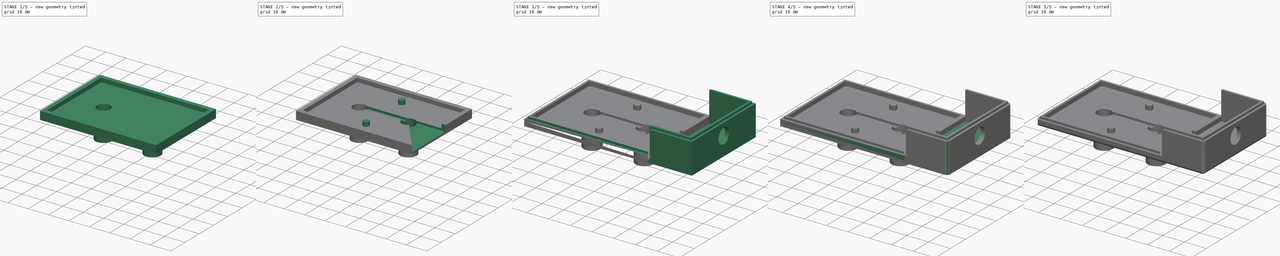
[diagram: build sequence overview — one tinted view per stage of 5, left to right]
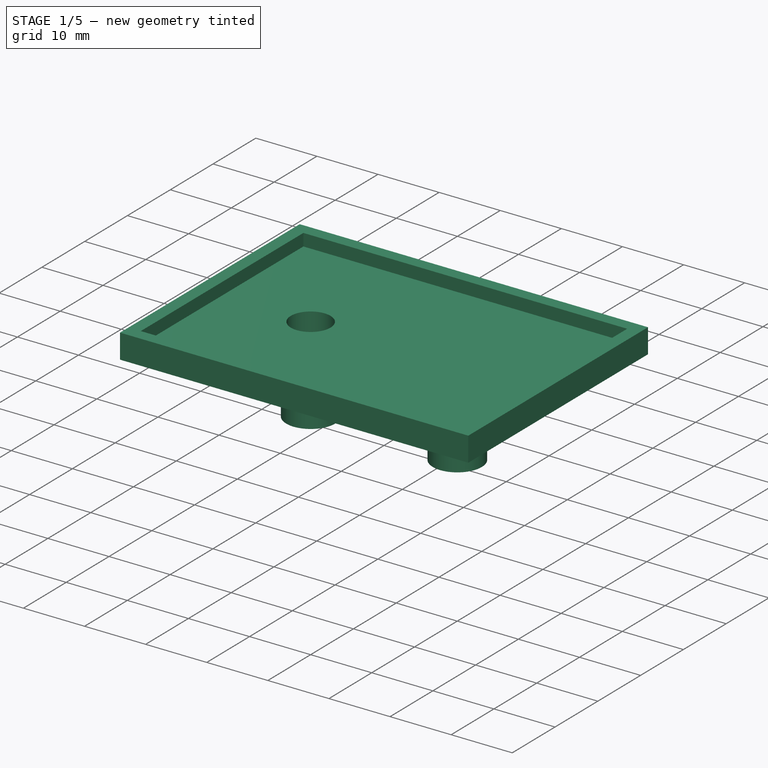
[diagram: stage 1 of 5 — iso view after this stage's code; geometry added in this stage tinted green]
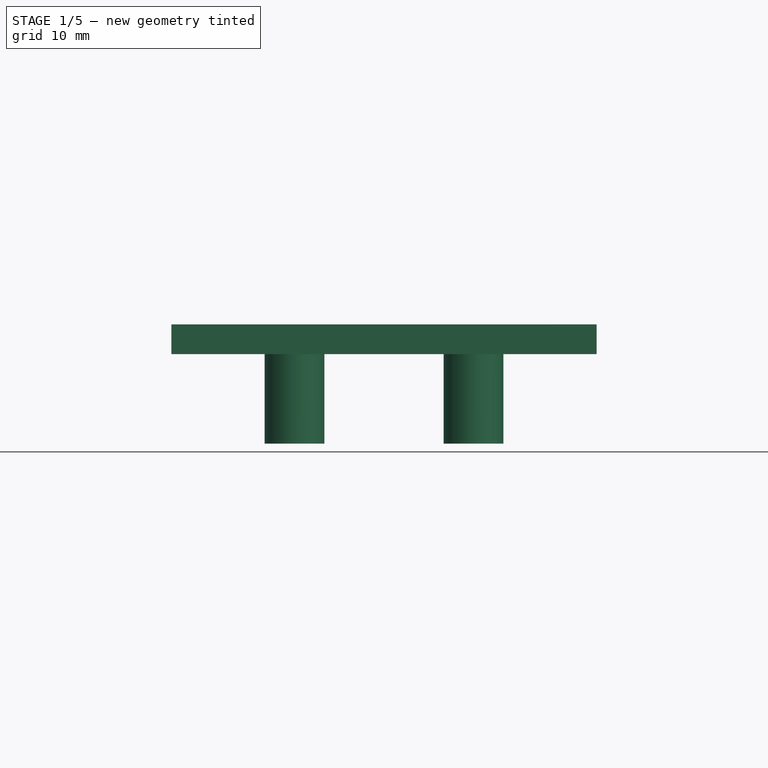
[diagram: stage 1 of 5 — front view after this stage's code; geometry added in this stage tinted green]
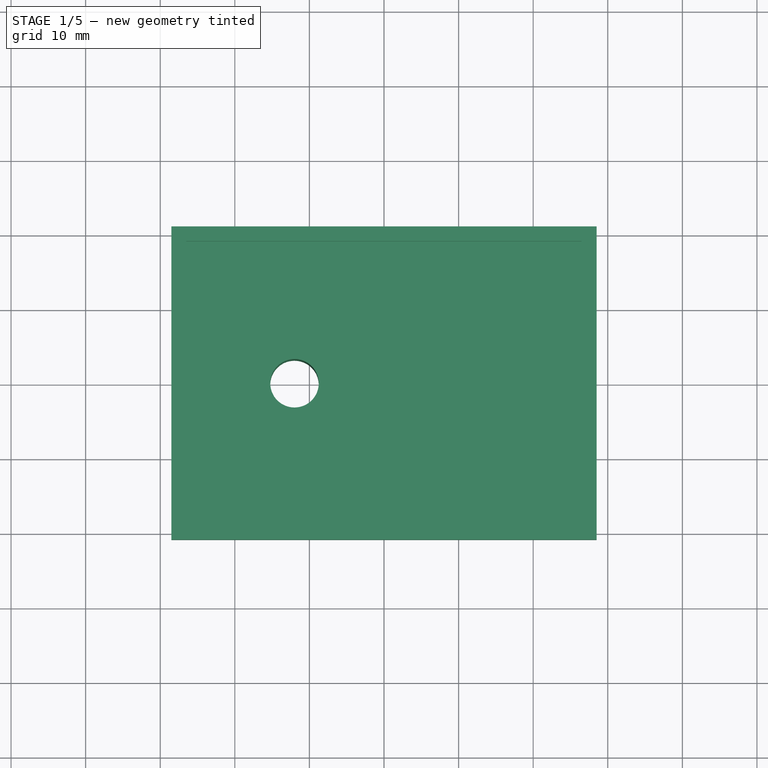
[diagram: stage 1 of 5 — top view after this stage's code; geometry added in this stage tinted green]
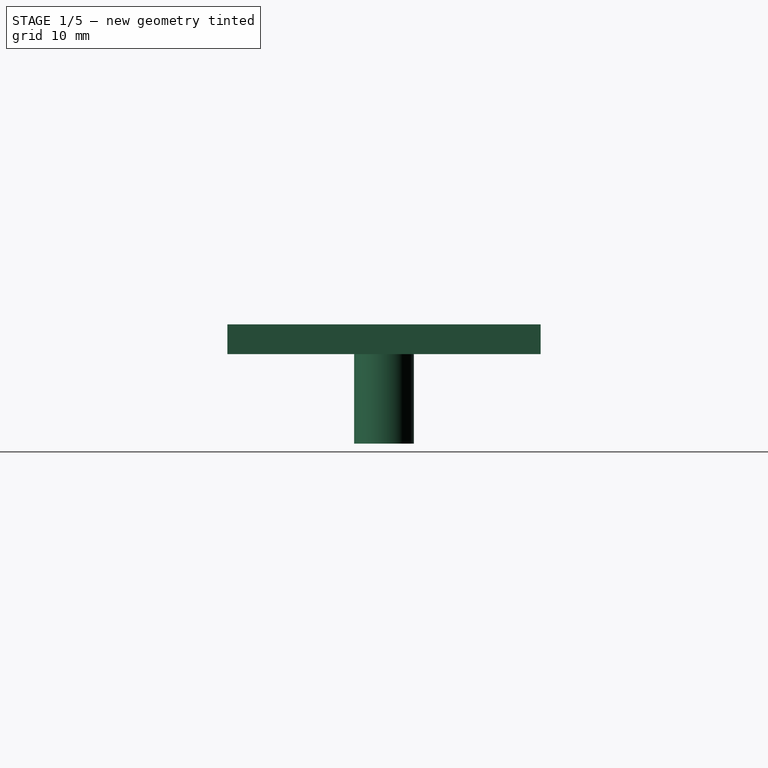
[diagram: stage 1 of 5 — right view after this stage's code; geometry added in this stage tinted green]
FCSTD DOCUMENT  (FreeCAD 0.20R29603 (Git))
Label: batteryHolder
License: All rights reserved
LicenseURL: http://en.wikipedia.org/wiki/All_rights_reserved
objects: Sketcher::SketchObject×23, PartDesign::Pocket×13, PartDesign::Pad×10, PartDesign::Mirrored×3, App::MeasureDistance×2, PartDesign::Body×1
note: 73 computed .brp shape members not serialized (recipe doc carries the construction recipe); baked Part::Feature solids carry a one-line shape summary decoded from their .brp

FEATURE [Sketcher::SketchObject] Sketch
  FullyConstrained = true
  MapMode = 5
  Support = -> [XY_Plane]
  sketch-geometry (4):
    g0: LineSegment StartX=-28.5 StartY=21 StartZ=0 EndX=28.5 EndY=21 EndZ=0
    g1: LineSegment StartX=28.5 StartY=21 StartZ=0 EndX=28.5 EndY=-21 EndZ=0
    g2: LineSegment StartX=28.5 StartY=-21 StartZ=0 EndX=-28.5 EndY=-21 EndZ=0
    g3: LineSegment StartX=-28.5 StartY=-21 StartZ=0 EndX=-28.5 EndY=21 EndZ=0
  constraints (12):
    c: Coincident(g0,g1)
    c: Coincident(g1,g2)
    c: Coincident(g2,g3)
    c: Coincident(g3,g0)
    c: Horizontal(g0)
    c: Horizontal(g2)
    c: Vertical(g1)
    c: Vertical(g3)
    c: DistanceX(g0,g0) = 57
    c: DistanceY(g1,g1) = 42
    c: DistanceX(g0,g-1) = 28.5
    c: DistanceY(g-1,g0) = 21
FEATURE [PartDesign::Pad] Pad  label="PadBottom"
  Direction = (0,0,1)
  Length = 2
  Length2 = 10
  Profile = -> Sketch
  Type = 0
FEATURE [Sketcher::SketchObject] Sketch001
  ExternalGeometry = -> [Pad]
  FullyConstrained = true
  MapMode = 5
  Placement = pos=(0,0,2) rot=(0,0,1;0rad)
  Support = -> [Pad]
  sketch-geometry (8):
    g0: LineSegment StartX=-28.5 StartY=21 StartZ=0 EndX=28.5 EndY=21 EndZ=0
    g1: LineSegment StartX=28.5 StartY=21 StartZ=0 EndX=28.5 EndY=-21 EndZ=0
    g2: LineSegment StartX=28.5 StartY=-21 StartZ=0 EndX=-28.5 EndY=-21 EndZ=0
    g3: LineSegment StartX=-28.5 StartY=-21 StartZ=0 EndX=-28.5 EndY=21 EndZ=0
    g4: LineSegment StartX=-26.5 StartY=19 StartZ=0 EndX=26.5 EndY=19 EndZ=0
    g5: LineSegment StartX=26.5 StartY=19 StartZ=0 EndX=26.5 EndY=-19 EndZ=0
    g6: LineSegment StartX=26.5 StartY=-19 StartZ=0 EndX=-26.5 EndY=-19 EndZ=0
    g7: LineSegment StartX=-26.5 StartY=-19 StartZ=0 EndX=-26.5 EndY=19 EndZ=0
  constraints (22):
    c: Coincident(g0,g1)
    c: Coincident(g1,g2)
    c: Coincident(g2,g3)
    c: Coincident(g3,g0)
    c: Horizontal(g0)
    c: Horizontal(g2)
    c: Vertical(g1)
    c: Vertical(g3)
    c: Coincident(g0,g-3)
    c: Coincident(g1,g-4)
    c: Coincident(g4,g5)
    c: Coincident(g5,g6)
    c: Coincident(g6,g7)
    c: Coincident(g7,g4)
    c: Horizontal(g4)
    c: Horizontal(g6)
    c: Vertical(g5)
    c: Vertical(g7)
    c: DistanceX(g0,g4) = 2
    c: DistanceY(g4,g0) = 2
    c: DistanceX(g5,g1) = 2
    c: DistanceY(g1,g5) = 2
FEATURE [PartDesign::Pad] Pad001  label="PadBrim"
  BaseFeature = -> Pad
  Direction = (0,0,1)
  Length = 2
  Length2 = 10
  Profile = -> Sketch001
  Type = 0
FEATURE [Sketcher::SketchObject] Sketch002
  FullyConstrained = true
  MapMode = 5
  Placement = pos=(0,0,0) rot=(1,0,0;3.14159rad)
  Support = -> [Pad001]
  sketch-geometry (1):
    g0: Circle CenterX=-12 CenterY=0 CenterZ=0 NormalX=0 NormalY=0 NormalZ=1 AngleXU=0 Radius=4
  constraints (3):
    c: PointOnObject(g0,g-1)
    c: DistanceX(g0,g-1) = 12
    c: Diameter(g0) = 8
FEATURE [PartDesign::Pad] Pad002  label="PadConnector"
  BaseFeature = -> Pad001
  Direction = (0,0,-1)
  Length = 12
  Length2 = 10
  Profile = -> Sketch002
  Type = 0
FEATURE [Sketcher::SketchObject] Sketch003
  ExternalGeometry = -> [Pad002]
  FullyConstrained = true
  MapMode = 5
  Placement = pos=(0,0,-12) rot=(1,0,0;3.14159rad)
  Support = -> [Pad002]
  sketch-geometry (1):
    g0: Circle CenterX=-12 CenterY=0 CenterZ=0 NormalX=0 NormalY=0 NormalZ=1 AngleXU=0 Radius=3.25
  constraints (2):
    c: Coincident(g0,g-3)
    c: Diameter(g0) = 6.5
FEATURE [PartDesign::Pocket] Pocket  label="PocketConnector"
  BaseFeature = -> Pad002
  Direction = (1,1,1)
  Length = 14
  Length2 = 5
  Profile = -> Sketch003
  Type = 0
FEATURE [PartDesign::Mirrored] Mirrored
  BaseFeature = -> Pocket
  MirrorPlane = -> Sketch002 [V_Axis]
  Originals = -> [Pad002]
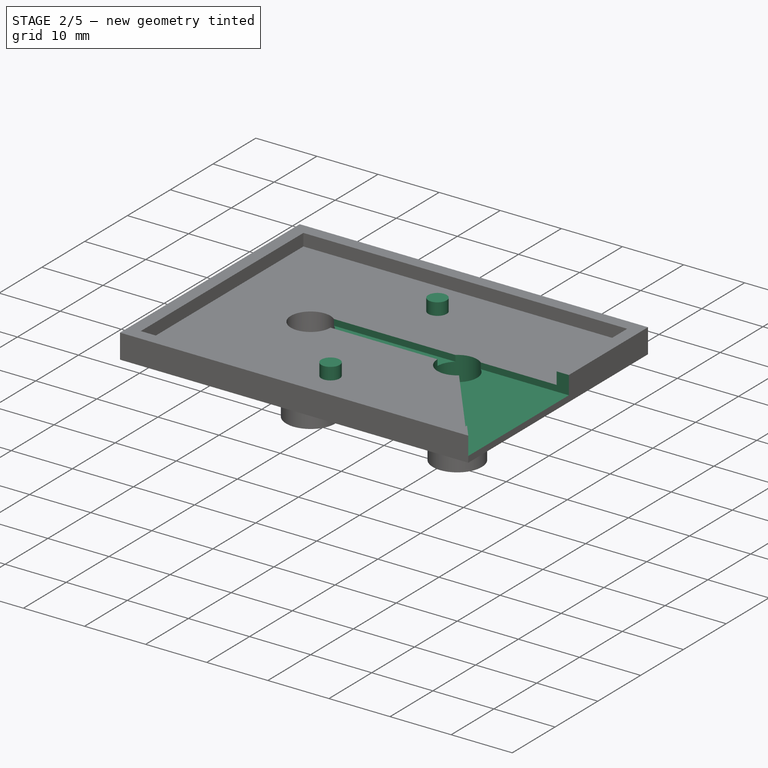
[diagram: stage 2 of 5 — iso view after this stage's code; geometry added in this stage tinted green]
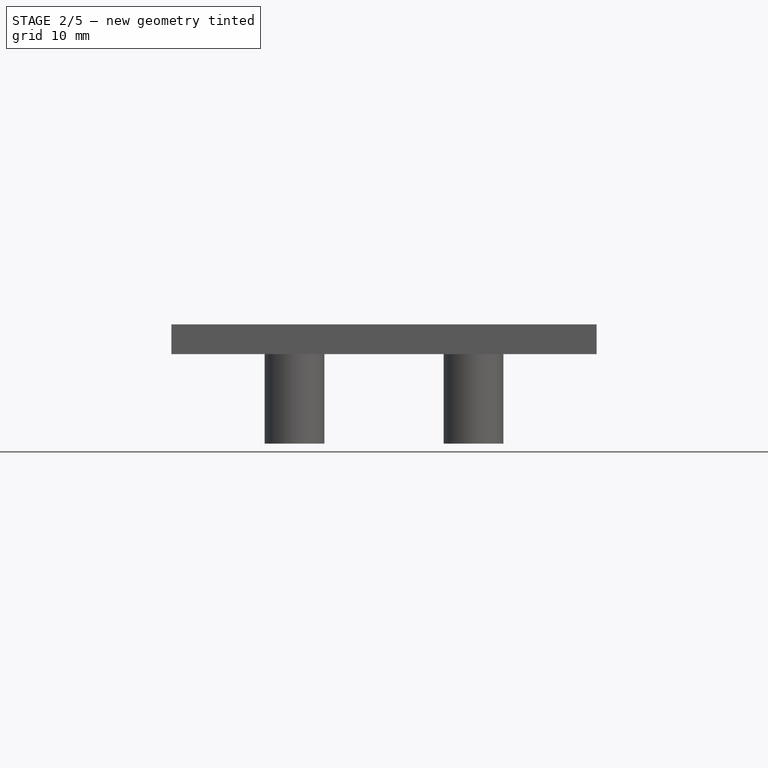
[diagram: stage 2 of 5 — front view after this stage's code; geometry added in this stage tinted green]
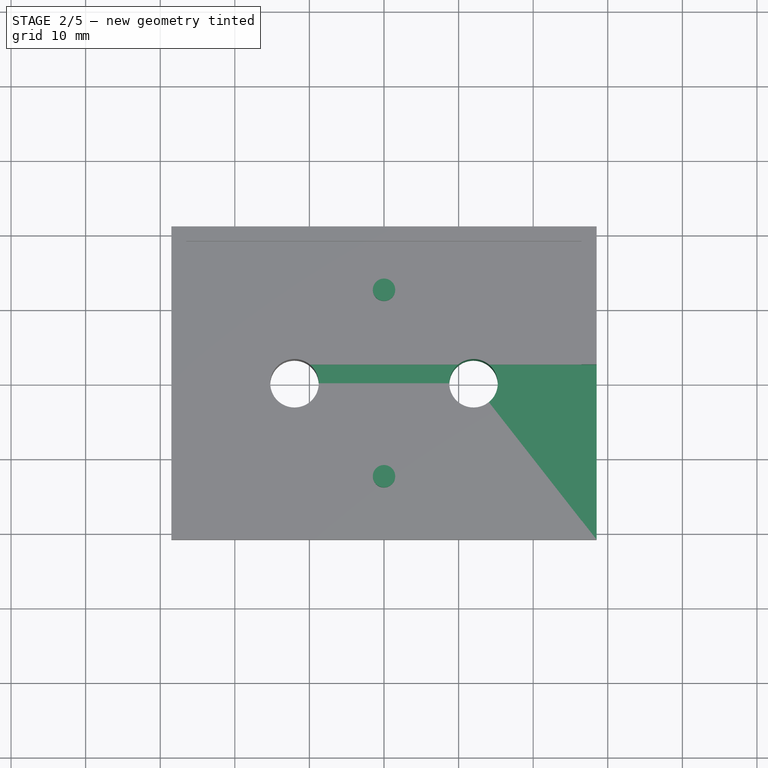
[diagram: stage 2 of 5 — top view after this stage's code; geometry added in this stage tinted green]
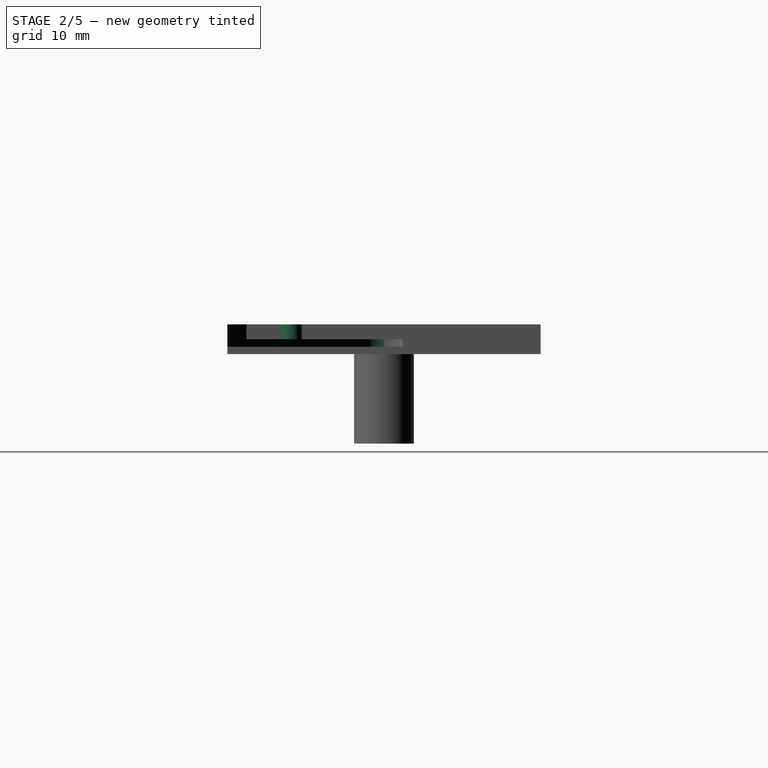
[diagram: stage 2 of 5 — right view after this stage's code; geometry added in this stage tinted green]
FEATURE [PartDesign::Mirrored] Mirrored001
  BaseFeature = -> Mirrored
  MirrorPlane = -> Sketch003 [V_Axis]
  Originals = -> [Pocket]
FEATURE [Sketcher::SketchObject] Sketch004
  ExternalGeometry = -> [Mirrored001]
  FullyConstrained = true
  MapMode = 5
  Placement = pos=(0,0,2) rot=(0,0,1;0rad)
  Support = -> [Mirrored001]
  sketch-geometry (1):
    g0: Circle CenterX=0 CenterY=12.5 CenterZ=0 NormalX=0 NormalY=0 NormalZ=1 AngleXU=0 Radius=1.5
  constraints (3):
    c: PointOnObject(g0,g-2)
    c: Diameter(g0) = 3
    c: DistanceY(g0,g-3) = 6.5
FEATURE [PartDesign::Pad] Pad003  label="padPin"
  BaseFeature = -> Mirrored001
  Direction = (0,0,1)
  Length = 2
  Length2 = 10
  Profile = -> Sketch004
  Type = 0
FEATURE [PartDesign::Mirrored] Mirrored002
  BaseFeature = -> Pad003
  MirrorPlane = -> Sketch004 [H_Axis]
  Originals = -> [Pad003]
FEATURE [Sketcher::SketchObject] Sketch005
  AttachmentOffset = pos=(0,0,2) rot=(0,0,1;0rad)
  ExternalGeometry = -> [Mirrored002]
  FullyConstrained = false
  MapMode = 5
  Placement = pos=(0,0,4) rot=(0,0,1;0rad)
  Support = -> [Mirrored002]
  sketch-geometry (4):
    g0: ArcOfCircle CenterX=12 CenterY=0 CenterZ=0 NormalX=0 NormalY=0 NormalZ=1 AngleXU=0 Radius=3.25 StartAngle=5.39436 EndAngle=7.16082
    g1: LineSegment StartX=14.0767 StartY=2.5 StartZ=0 EndX=28.5 EndY=2.5 EndZ=0
    g2: LineSegment StartX=28.5 StartY=2.5 StartZ=0 EndX=28.5 EndY=-21 EndZ=0
    g3: LineSegment StartX=28.5 StartY=-21 StartZ=0 EndX=14.0486 EndY=-2.52307 EndZ=0
  constraints (9):
    c: PointOnObject(g0,g-3)
    c: Coincident(g0,g-3)
    c: Coincident(g0,g1)
    c: Coincident(g1,g2)
    c: Coincident(g2,g-4)
    c: Vertical(g2)
    c: Coincident(g2,g3)
    c: Coincident(g3,g0)
    c: Horizontal(g1)
FEATURE [PartDesign::Pocket] Pocket001
  BaseFeature = -> Mirrored002
  Direction = (0,0,-1)
  Length = 3
  Length2 = 5
  Profile = -> Sketch005
  ReferenceAxis = -> Sketch005 [N_Axis]
  Type = 0
FEATURE [Sketcher::SketchObject] Sketch006
  ExternalGeometry = -> [Pocket001]
  FullyConstrained = true
  MapMode = 5
  Placement = pos=(0,0,2) rot=(0,0,1;0rad)
  Support = -> [Pocket001]
  sketch-geometry (4):
    g0: LineSegment StartX=-12 StartY=2.5 StartZ=0 EndX=14.0767 EndY=2.5 EndZ=0
    g1: LineSegment StartX=14.0767 StartY=2.5 StartZ=0 EndX=14.0767 EndY=0 EndZ=0
    g2: LineSegment StartX=14.0767 StartY=0 StartZ=0 EndX=-12 EndY=0 EndZ=0
    g3: LineSegment StartX=-12 StartY=0 StartZ=0 EndX=-12 EndY=2.5 EndZ=0
  constraints (10):
    c: Coincident(g0,g1)
    c: Coincident(g1,g2)
    c: Coincident(g2,g3)
    c: Coincident(g3,g0)
    c: Horizontal(g0)
    c: Horizontal(g2)
    c: Vertical(g1)
    c: Vertical(g3)
    c: Coincident(g0,g-4)
    c: Coincident(g2,g-3)
FEATURE [PartDesign::Pocket] Pocket002
  BaseFeature = -> Pocket001
  Direction = (0,0,-1)
  Length = 1
  Length2 = 5
  Profile = -> Sketch006
  ReferenceAxis = -> Sketch006 [N_Axis]
  Type = 0
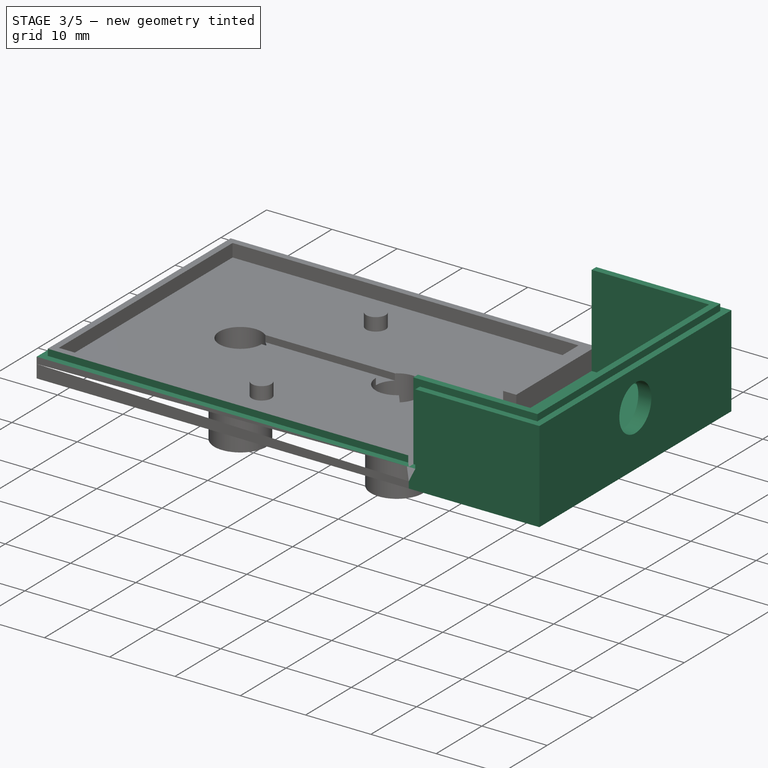
[diagram: stage 3 of 5 — iso view after this stage's code; geometry added in this stage tinted green]
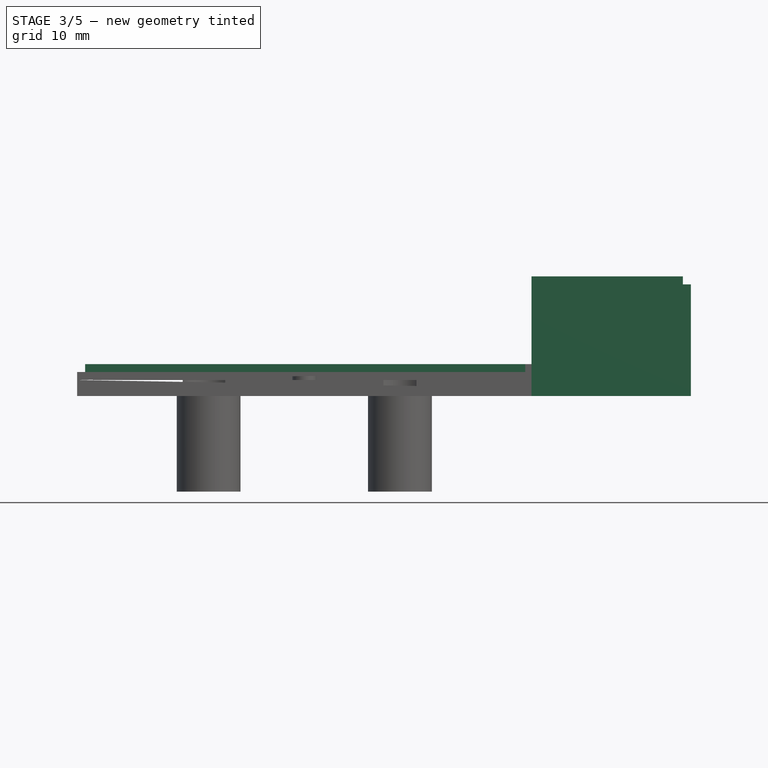
[diagram: stage 3 of 5 — front view after this stage's code; geometry added in this stage tinted green]
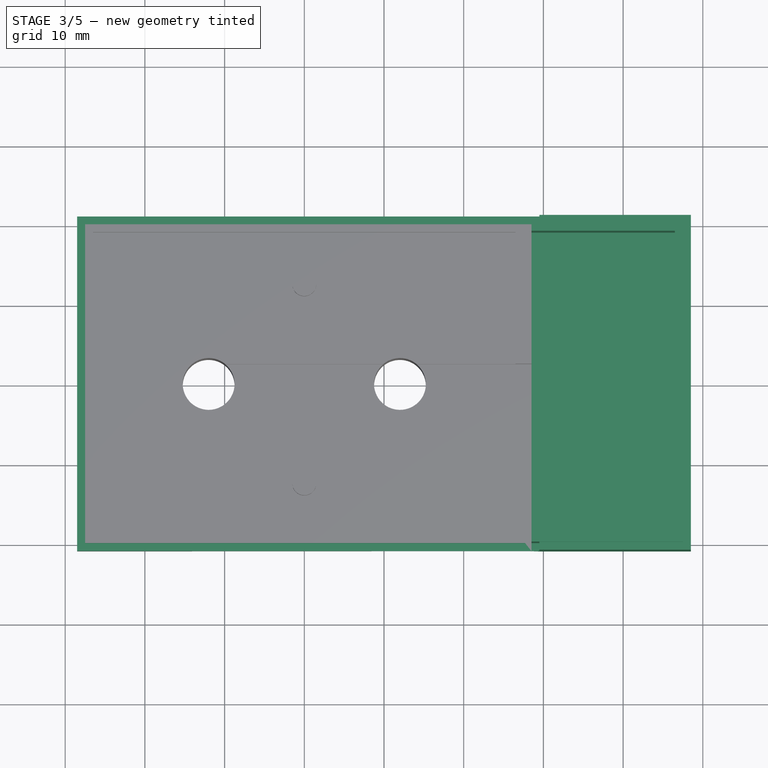
[diagram: stage 3 of 5 — top view after this stage's code; geometry added in this stage tinted green]
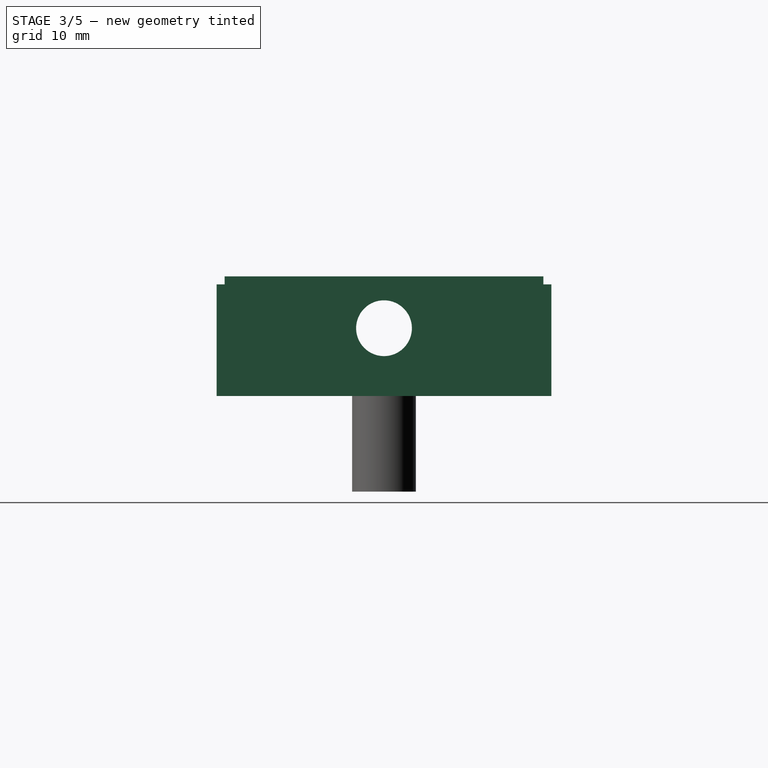
[diagram: stage 3 of 5 — right view after this stage's code; geometry added in this stage tinted green]
FEATURE [Sketcher::SketchObject] Sketch007
  ExternalGeometry = -> [Pocket002]
  FullyConstrained = true
  MapMode = 5
  Placement = pos=(0,0,4) rot=(0,0,1;0rad)
  Support = -> [Pocket002]
  sketch-geometry (8):
    g0: LineSegment StartX=28.5 StartY=21 StartZ=0 EndX=28.5 EndY=20 EndZ=0
    g1: LineSegment StartX=28.5 StartY=20 StartZ=0 EndX=-27.5 EndY=20 EndZ=0
    g2: LineSegment StartX=-27.5 StartY=20 StartZ=0 EndX=-27.5 EndY=-20 EndZ=0
    g3: LineSegment StartX=-27.5 StartY=-20 StartZ=0 EndX=28.5 EndY=-20 EndZ=0
    g4: LineSegment StartX=28.5 StartY=-20 StartZ=0 EndX=28.5 EndY=-21 EndZ=0
    g5: LineSegment StartX=28.5 StartY=-21 StartZ=0 EndX=-28.5 EndY=-21 EndZ=0
    g6: LineSegment StartX=-28.5 StartY=-21 StartZ=0 EndX=-28.5 EndY=21 EndZ=0
    g7: LineSegment StartX=-28.5 StartY=21 StartZ=0 EndX=28.5 EndY=21 EndZ=0
  constraints (20):
    c: Coincident(g-3,g0)
    c: Vertical(g0)
    c: Coincident(g0,g1)
    c: Horizontal(g1)
    c: Coincident(g1,g2)
    c: Vertical(g2)
    c: Coincident(g2,g3)
    c: Horizontal(g3)
    c: Coincident(g3,g4)
    c: Coincident(g4,g-4)
    c: Vertical(g4)
    c: Coincident(g4,g5)
    c: Coincident(g5,g-4)
    c: Coincident(g5,g6)
    c: Coincident(g6,g-3)
    c: Coincident(g6,g7)
    c: Coincident(g7,g0)
    c: DistanceY(g0,g0) = 1
    c: DistanceX(g6,g1) = 1
    c: DistanceY(g5,g2) = 1
FEATURE [PartDesign::Pocket] Pocket003
  BaseFeature = -> Pocket002
  Direction = (0,0,-1)
  Length = 1
  Length2 = 5
  Profile = -> Sketch007
  ReferenceAxis = -> Sketch007 [N_Axis]
  Type = 0
FEATURE [Sketcher::SketchObject] Sketch008
  ExternalGeometry = -> [Pocket003]
  FullyConstrained = true
  MapMode = 5
  Placement = pos=(28.5,0,0) rot=(0.57735,0.57735,0.57735;2.0944rad)
  Support = -> [Pocket003]
  sketch-geometry (13):
    g0: LineSegment StartX=-19 StartY=1 StartZ=0 EndX=-19 EndY=15 EndZ=0
    g1: LineSegment StartX=-19 StartY=15 StartZ=0 EndX=-20 EndY=15 EndZ=0
    g2: LineSegment StartX=-20 StartY=15 StartZ=0 EndX=-20 EndY=4 EndZ=0
    g3: LineSegment StartX=-20 StartY=4 StartZ=0 EndX=-20 EndY=3 EndZ=0
    g4: LineSegment StartX=-20 StartY=3 StartZ=0 EndX=-21 EndY=3 EndZ=0
    g5: LineSegment StartX=-21 StartY=3 StartZ=0 EndX=-21 EndY=0 EndZ=0
    g6: LineSegment StartX=-21 StartY=0 StartZ=0 EndX=21 EndY=0 EndZ=0
    g7: LineSegment StartX=21 StartY=0 StartZ=0 EndX=21 EndY=3 EndZ=0
    g8: LineSegment StartX=21 StartY=3 StartZ=0 EndX=20 EndY=3 EndZ=0
    g9: LineSegment StartX=20 StartY=3 StartZ=0 EndX=20 EndY=15 EndZ=0
    g10: LineSegment StartX=20 StartY=15 StartZ=0 EndX=19 EndY=15 EndZ=0
    g11: LineSegment StartX=19 StartY=15 StartZ=0 EndX=19 EndY=1 EndZ=0
    g12: LineSegment StartX=19 StartY=1 StartZ=0 EndX=-19 EndY=1 EndZ=0
  constraints (33):
    c: PointOnObject(g0,g-8)
    c: Vertical(g0)
    c: Coincident(g0,g1)
    c: Horizontal(g1)
    c: Coincident(g1,g2)
    c: Coincident(g2,g-3)
    c: Vertical(g2)
    c: Coincident(g2,g3)
    c: Vertical(g3)
    c: Coincident(g3,g4)
    c: Coincident(g4,g-5)
    c: Horizontal(g4)
    c: Coincident(g4,g5)
    c: Coincident(g5,g-6)
    c: Coincident(g5,g6)
    c: Coincident(g6,g-6)
    c: Coincident(g6,g7)
    c: Coincident(g7,g-4)
    c: Coincident(g7,g8)
    c: Coincident(g8,g-4)
    c: Coincident(g8,g9)
    c: Vertical(g9)
    c: Coincident(g9,g10)
    c: Horizontal(g10)
    c: Coincident(g10,g11)
    c: Vertical(g11)
    c: Coincident(g11,g12)
    c: Coincident(g12,g0)
    c: Horizontal(g12)
    c: DistanceX(g10,g10) = 1
    c: DistanceX(g1,g1) = 1
    c: DistanceY(g0,g0) = 14
    c: DistanceY(g11,g11) = 14
FEATURE [PartDesign::Pad] Pad004
  BaseFeature = -> Pocket003
  Direction = (1,0,0)
  Length = 1
  Length2 = 10
  Profile = -> Sketch008
  ReferenceAxis = -> Sketch008 [N_Axis]
  Type = 0
FEATURE [Sketcher::SketchObject] Sketch009
  ExternalGeometry = -> [Pad004]
  FullyConstrained = true
  MapMode = 5
  Placement = pos=(29.5,0,0) rot=(0.57735,0.57735,0.57735;2.0944rad)
  Support = -> [Pad004]
  sketch-geometry (12):
    g0: LineSegment StartX=-19 StartY=15 StartZ=0 EndX=-20 EndY=15 EndZ=0
    g1: LineSegment StartX=-20 StartY=15 StartZ=0 EndX=-20 EndY=14 EndZ=0
    g2: LineSegment StartX=-20 StartY=14 StartZ=0 EndX=-21 EndY=14 EndZ=0
    g3: LineSegment StartX=-21 StartY=14 StartZ=0 EndX=-21 EndY=0 EndZ=0
    g4: LineSegment StartX=-21 StartY=0 StartZ=0 EndX=21 EndY=0 EndZ=0
    g5: LineSegment StartX=21 StartY=0 StartZ=0 EndX=21 EndY=14 EndZ=0
    g6: LineSegment StartX=21 StartY=14 StartZ=0 EndX=20 EndY=14 EndZ=0
    g7: LineSegment StartX=20 StartY=14 StartZ=0 EndX=20 EndY=15 EndZ=0
    g8: LineSegment StartX=20 StartY=15 StartZ=0 EndX=19 EndY=15 EndZ=0
    g9: LineSegment StartX=19 StartY=15 StartZ=0 EndX=19 EndY=1 EndZ=0
    g10: LineSegment StartX=19 StartY=1 StartZ=0 EndX=-19 EndY=1 EndZ=0
    g11: LineSegment StartX=-19 StartY=1 StartZ=0 EndX=-19 EndY=15 EndZ=0
  constraints (29):
    c: Coincident(g0,g-3)
    c: Coincident(g0,g1)
    c: Vertical(g1)
    c: Coincident(g1,g2)
    c: Horizontal(g2)
    c: Coincident(g2,g3)
    c: Coincident(g3,g-6)
    c: Vertical(g3)
    c: Coincident(g3,g4)
    c: Coincident(g4,g-6)
    c: Coincident(g4,g5)
    c: Vertical(g5)
    c: Coincident(g5,g6)
    c: Horizontal(g6)
    c: Coincident(g6,g7)
    c: Coincident(g7,g-4)
    c: Vertical(g7)
    c: Coincident(g7,g8)
    c: Coincident(g8,g-4)
    c: Coincident(g8,g9)
    c: Coincident(g9,g-5)
    c: Coincident(g9,g10)
    c: Coincident(g10,g-5)
    c: Coincident(g10,g11)
    c: Coincident(g11,g0)
    c: Vertical(g11)
    c: Horizontal(g0)
    c: DistanceY(g1,g0) = 1
    c: DistanceY(g6,g7) = 1
FEATURE [PartDesign::Pad] Pad005
  BaseFeature = -> Pad004
  Direction = (1,0,0)
  Length = 17
  Length2 = 10
  Profile = -> Sketch009
  ReferenceAxis = -> Sketch009 [N_Axis]
  Type = 0
FEATURE [Sketcher::SketchObject] Sketch010
  ExternalGeometry = -> [Pad005]
  FullyConstrained = true
  MapMode = 5
  Placement = pos=(46.5,0,0) rot=(0.57735,0.57735,0.57735;2.0944rad)
  Support = -> [Pad005]
  sketch-geometry (8):
    g0: LineSegment StartX=-20 StartY=15 StartZ=0 EndX=20 EndY=15 EndZ=0
    g1: LineSegment StartX=20 StartY=15 StartZ=0 EndX=20 EndY=14 EndZ=0
    g2: LineSegment StartX=20 StartY=14 StartZ=0 EndX=21 EndY=14 EndZ=0
    g3: LineSegment StartX=21 StartY=14 StartZ=0 EndX=21 EndY=0 EndZ=0
    g4: LineSegment StartX=21 StartY=0 StartZ=0 EndX=-21 EndY=0 EndZ=0
    g5: LineSegment StartX=-21 StartY=0 StartZ=0 EndX=-21 EndY=14 EndZ=0
    g6: LineSegment StartX=-21 StartY=14 StartZ=0 EndX=-20 EndY=14 EndZ=0
    g7: LineSegment StartX=-20 StartY=14 StartZ=0 EndX=-20 EndY=15 EndZ=0
  constraints (16):
    c: Coincident(g-3,g0)
    c: Coincident(g0,g-4)
    c: Coincident(g0,g1)
    c: Coincident(g1,g-8)
    c: Coincident(g1,g2)
    c: Coincident(g2,g-8)
    c: Coincident(g2,g3)
    c: Coincident(g3,g-5)
    c: Coincident(g3,g4)
    c: Coincident(g4,g-6)
    c: Coincident(g4,g5)
    c: Coincident(g5,g-7)
    c: Coincident(g5,g6)
    c: Coincident(g6,g-7)
    c: Coincident(g6,g7)
    c: Coincident(g7,g0)
FEATURE [PartDesign::Pad] Pad006
  BaseFeature = -> Pad005
  Direction = (1,0,0)
  Length = 1
  Length2 = 10
  Profile = -> Sketch010
  ReferenceAxis = -> Sketch010 [N_Axis]
  Type = 0
FEATURE [Sketcher::SketchObject] Sketch011
  ExternalGeometry = -> [Pad006]
  FullyConstrained = true
  MapMode = 5
  Placement = pos=(47.5,0,0) rot=(0.57735,0.57735,0.57735;2.0944rad)
  Support = -> [Pad006]
  sketch-geometry (4):
    g0: LineSegment StartX=21 StartY=14 StartZ=0 EndX=-21 EndY=14 EndZ=0
    g1: LineSegment StartX=-21 StartY=14 StartZ=0 EndX=-21 EndY=0 EndZ=0
    g2: LineSegment StartX=-21 StartY=0 StartZ=0 EndX=21 EndY=0 EndZ=0
    g3: LineSegment StartX=21 StartY=0 StartZ=0 EndX=21 EndY=14 EndZ=0
  constraints (10):
    c: Coincident(g0,g1)
    c: Coincident(g1,g2)
    c: Coincident(g2,g3)
    c: Coincident(g3,g0)
    c: Horizontal(g0)
    c: Horizontal(g2)
    c: Vertical(g1)
    c: Vertical(g3)
    c: Coincident(g0,g-4)
    c: Coincident(g1,g-3)
FEATURE [PartDesign::Pad] Pad007
  BaseFeature = -> Pad006
  Direction = (1,0,0)
  Length = 1
  Length2 = 10
  Profile = -> Sketch011
  ReferenceAxis = -> Sketch011 [N_Axis]
  Type = 0
FEATURE [Sketcher::SketchObject] Sketch012
  FullyConstrained = true
  MapMode = 5
  Placement = pos=(48.5,0,0) rot=(0.57735,0.57735,0.57735;2.0944rad)
  Support = -> [Pad007]
  sketch-geometry (1):
    g0: Circle CenterX=0 CenterY=8.5 CenterZ=0 NormalX=0 NormalY=0 NormalZ=1 AngleXU=0 Radius=3.5
  constraints (3):
    c: Diameter(g0) = 7
    c: DistanceX(g0,g-1) = 0
    c: DistanceY(g-1,g0) = 8.5
FEATURE [PartDesign::Pocket] Pocket004
  BaseFeature = -> Pad007
  Direction = (-1,0,0)
  Length = 2
  Length2 = 5
  Profile = -> Sketch012
  ReferenceAxis = -> Sketch012 [N_Axis]
  Type = 0
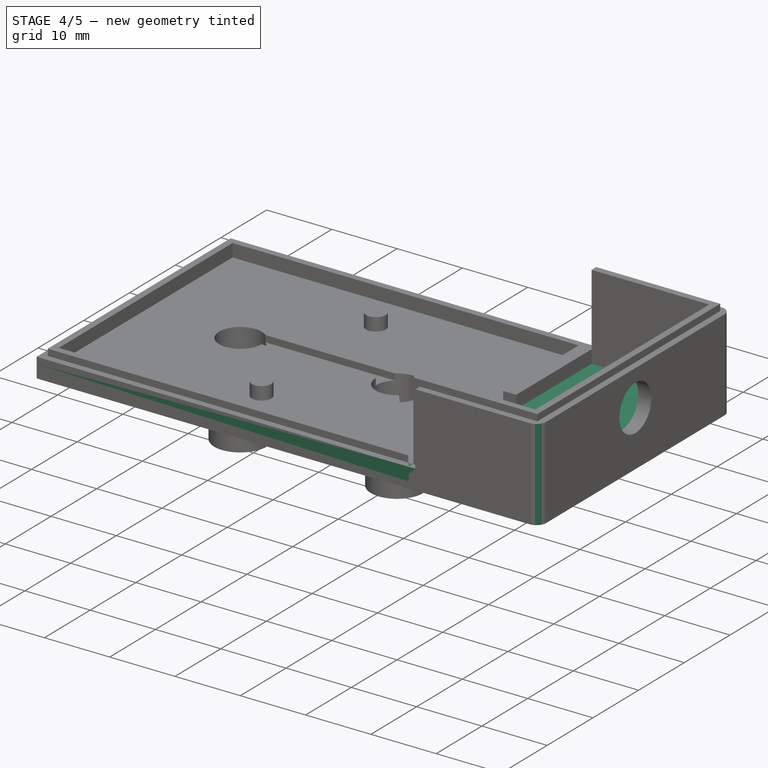
[diagram: stage 4 of 5 — iso view after this stage's code; geometry added in this stage tinted green]
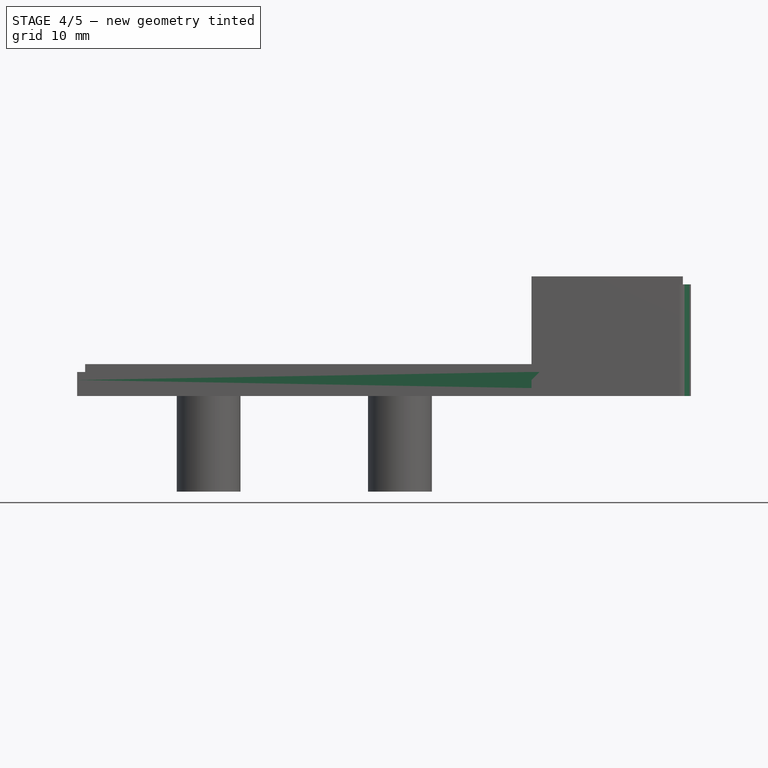
[diagram: stage 4 of 5 — front view after this stage's code; geometry added in this stage tinted green]
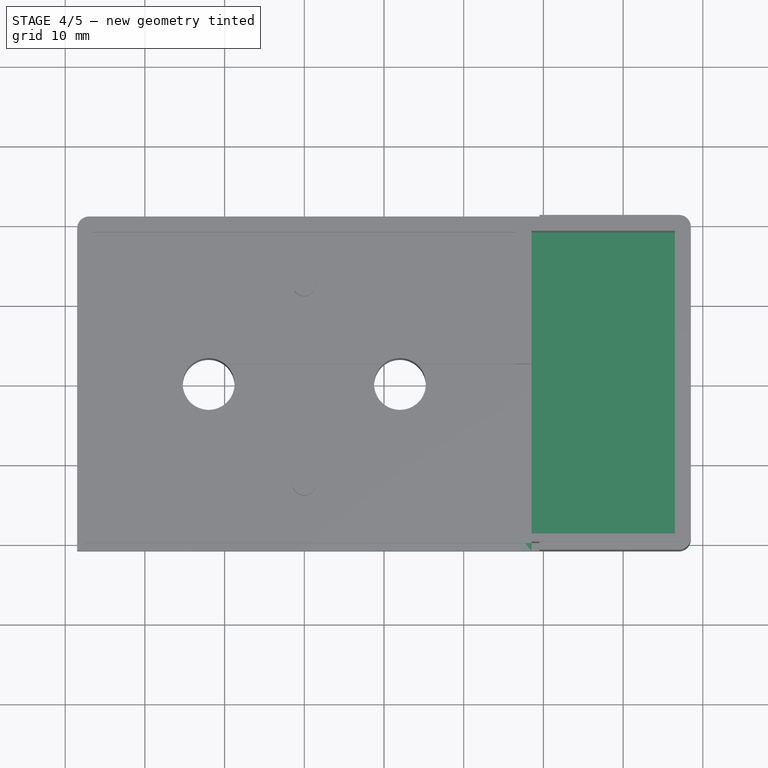
[diagram: stage 4 of 5 — top view after this stage's code; geometry added in this stage tinted green]
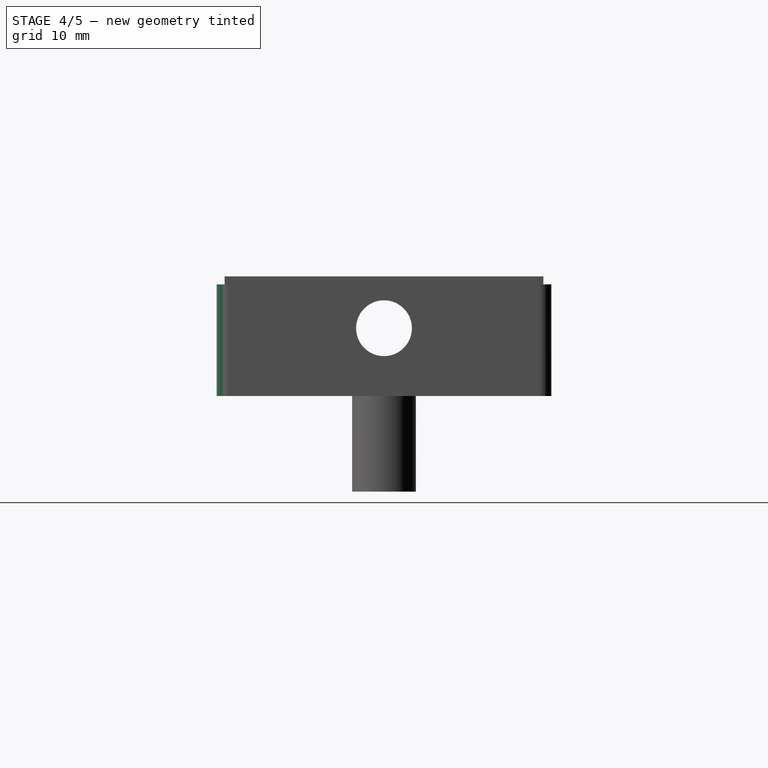
[diagram: stage 4 of 5 — right view after this stage's code; geometry added in this stage tinted green]
FEATURE [Sketcher::SketchObject] Sketch013
  ExternalGeometry = -> [Pocket004]
  FullyConstrained = true
  MapMode = 5
  Placement = pos=(0,0,1) rot=(0,0,1;0rad)
  Support = -> [Pocket004]
  sketch-geometry (4):
    g0: LineSegment StartX=46.5 StartY=-19 StartZ=0 EndX=28.5 EndY=-19 EndZ=0
    g1: LineSegment StartX=28.5 StartY=-19 StartZ=0 EndX=28.5 EndY=19 EndZ=0
    g2: LineSegment StartX=28.5 StartY=19 StartZ=0 EndX=46.5 EndY=19 EndZ=0
    g3: LineSegment StartX=46.5 StartY=19 StartZ=0 EndX=46.5 EndY=-19 EndZ=0
  constraints (10):
    c: Coincident(g0,g1)
    c: Coincident(g1,g2)
    c: Coincident(g2,g3)
    c: Coincident(g3,g0)
    c: Horizontal(g0)
    c: Horizontal(g2)
    c: Vertical(g1)
    c: Vertical(g3)
    c: Coincident(g0,g-4)
    c: Coincident(g1,g-3)
FEATURE [PartDesign::Pad] Pad008
  BaseFeature = -> Pocket004
  Direction = (0,0,1)
  Length = 1
  Length2 = 10
  Profile = -> Sketch013
  ReferenceAxis = -> Sketch013 [N_Axis]
  Type = 0
FEATURE [Sketcher::SketchObject] Sketch014
  ExternalGeometry = -> [Pad008]
  FullyConstrained = true
  MapMode = 5
  Placement = pos=(0,0,1) rot=(0,0,1;0rad)
  Support = -> [Pad008]
  sketch-geometry (4):
    g0: LineSegment StartX=28.5 StartY=-21 StartZ=0 EndX=27.7179 EndY=-21 EndZ=0
    g1: LineSegment StartX=27.7179 StartY=-21 StartZ=0 EndX=27.7179 EndY=-20 EndZ=0
    g2: LineSegment StartX=27.7179 StartY=-20 StartZ=0 EndX=28.5 EndY=-20 EndZ=0
    g3: LineSegment StartX=28.5 StartY=-20 StartZ=0 EndX=28.5 EndY=-21 EndZ=0
  constraints (10):
    c: Coincident(g0,g1)
    c: Coincident(g1,g2)
    c: Coincident(g2,g3)
    c: Coincident(g3,g0)
    c: Horizontal(g0)
    c: Horizontal(g2)
    c: Vertical(g1)
    c: Vertical(g3)
    c: Coincident(g0,g-4)
    c: Coincident(g1,g-3)
FEATURE [PartDesign::Pad] Pad009
  BaseFeature = -> Pad008
  Direction = (0,0,1)
  Length = 2
  Length2 = 10
  Profile = -> Sketch014
  ReferenceAxis = -> Sketch014 [N_Axis]
  Type = 0
FEATURE [Sketcher::SketchObject] Sketch015
  ExternalGeometry = -> [Pad009]
  FullyConstrained = false
  MapMode = 5
  Placement = pos=(0,0,14) rot=(0,0,1;0rad)
  Support = -> [Pad009]
  sketch-geometry (3):
    g0: ArcOfCircle CenterX=47 CenterY=-19.5001 CenterZ=0 NormalX=0 NormalY=0 NormalZ=1 AngleXU=0 Radius=1.5 StartAngle=4.725 EndAngle=6.28319
    g1: LineSegment StartX=48.5 StartY=-19.5001 StartZ=0 EndX=48.5 EndY=-21 EndZ=0
    g2: LineSegment StartX=48.5 StartY=-21 StartZ=0 EndX=47.0189 EndY=-21 EndZ=0
  constraints (8):
    c: PointOnObject(g0,g-6)
    c: PointOnObject(g0,g-5)
    c: Radius(g0) = 1.5
    c: Coincident(g1,g0)
    c: Coincident(g1,g-6)
    c: Tangent(g1,g0)
    c: Coincident(g2,g1)
    c: Coincident(g2,g0)
FEATURE [PartDesign::Pocket] Pocket005
  BaseFeature = -> Pad009
  Direction = (0,0,-1)
  Length = 15
  Length2 = 5
  Profile = -> Sketch015
  ReferenceAxis = -> Sketch015 [N_Axis]
  Type = 0
FEATURE [Sketcher::SketchObject] Sketch016
  ExternalGeometry = -> [Pocket005]
  FullyConstrained = true
  MapMode = 5
  Placement = pos=(0,0,14) rot=(0,0,1;0rad)
  Support = -> [Pocket005]
  sketch-geometry (3):
    g0: ArcOfCircle CenterX=47 CenterY=19.5 CenterZ=0 NormalX=0 NormalY=0 NormalZ=1 AngleXU=0 Radius=1.50001 StartAngle=5.30382e-06 EndAngle=1.57079
    g1: LineSegment StartX=47 StartY=21 StartZ=0 EndX=48.5 EndY=21 EndZ=0
    g2: LineSegment StartX=48.5 StartY=21 StartZ=0 EndX=48.5 EndY=19.5 EndZ=0
  constraints (9):
    c: Coincident(g1,g0)
    c: Coincident(g1,g-3)
    c: Horizontal(g1)
    c: Tangent(g1,g0)
    c: Coincident(g2,g1)
    c: Coincident(g2,g0)
    c: Vertical(g2)
    c: Tangent(g2,g0)
    c: DistanceX(g1,g1) = 1.5
FEATURE [PartDesign::Pocket] Pocket006
  BaseFeature = -> Pocket005
  Direction = (0,0,-1)
  Length = 15
  Length2 = 5
  Profile = -> Sketch016
  ReferenceAxis = -> Sketch016 [N_Axis]
  Type = 0
FEATURE [Sketcher::SketchObject] Sketch017
  ExternalGeometry = -> [Pocket006]
  FullyConstrained = true
  MapMode = 5
  Placement = pos=(0,0,3) rot=(0,0,1;0rad)
  Support = -> [Pocket006]
  sketch-geometry (3):
    g0: ArcOfCircle CenterX=-27 CenterY=19.5 CenterZ=0 NormalX=0 NormalY=0 NormalZ=1 AngleXU=0 Radius=1.5 StartAngle=1.5708 EndAngle=3.1416
    g1: LineSegment StartX=-27 StartY=21 StartZ=0 EndX=-28.5 EndY=21 EndZ=0
    g2: LineSegment StartX=-28.5 StartY=21 StartZ=0 EndX=-28.5 EndY=19.5 EndZ=0
  constraints (9):
    c: PointOnObject(g0,g-3)
    c: PointOnObject(g0,g-4)
    c: Coincident(g1,g0)
    c: Coincident(g1,g-4)
    c: Tangent(g1,g0)
    c: Coincident(g2,g1)
    c: Coincident(g2,g0)
    c: Tangent(g2,g0)
    c: DistanceX(g1,g0) = 1.5
FEATURE [PartDesign::Pocket] Pocket007
  BaseFeature = -> Pocket006
  Direction = (0,0,-1)
  Length = 3
  Length2 = 5
  Profile = -> Sketch017
  ReferenceAxis = -> Sketch017 [N_Axis]
  Type = 0
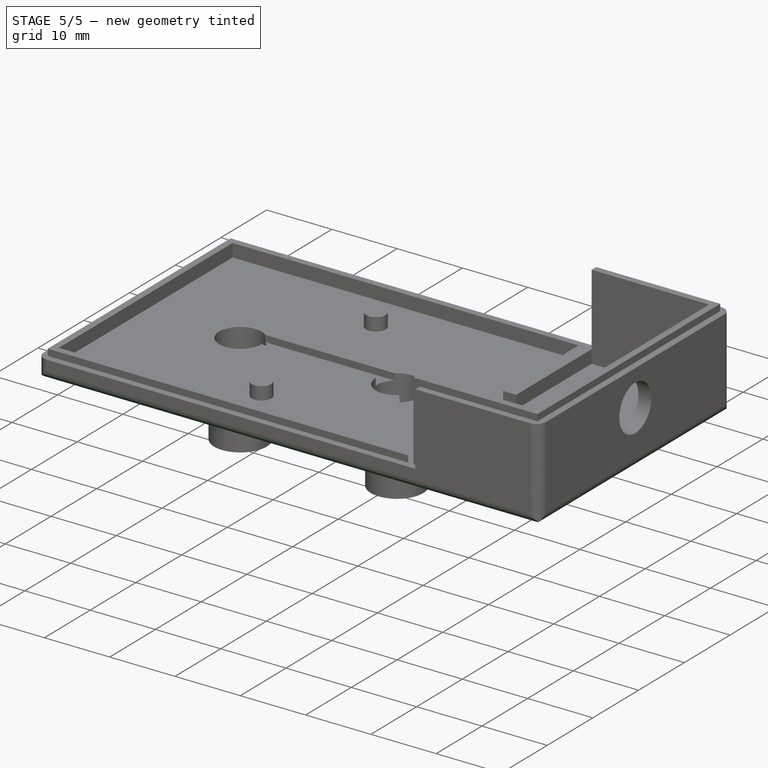
[diagram: stage 5 of 5 — iso view after this stage's code; geometry added in this stage tinted green]
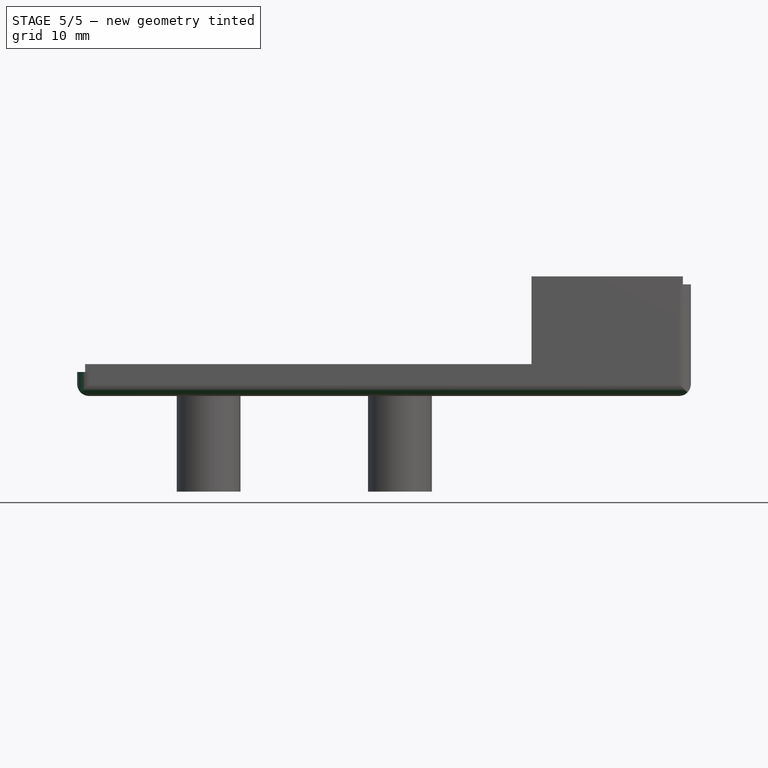
[diagram: stage 5 of 5 — front view after this stage's code; geometry added in this stage tinted green]
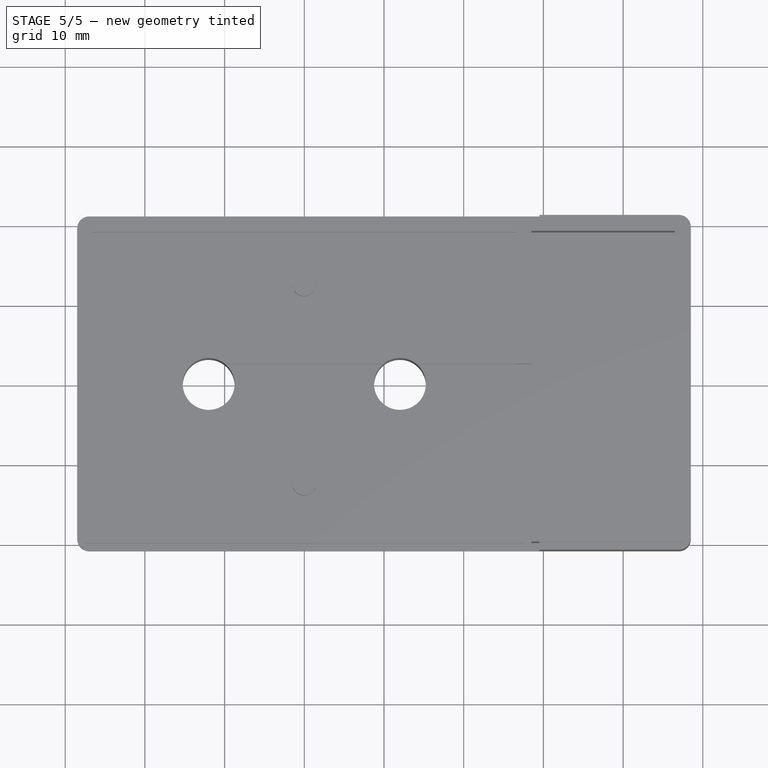
[diagram: stage 5 of 5 — top view after this stage's code; geometry added in this stage tinted green]
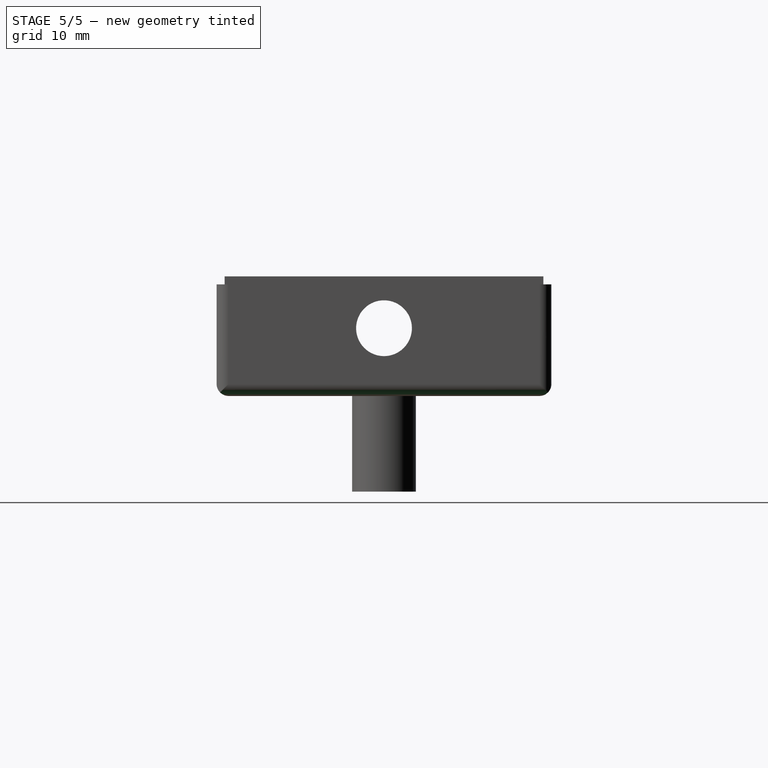
[diagram: stage 5 of 5 — right view after this stage's code; geometry added in this stage tinted green]
FEATURE [Sketcher::SketchObject] Sketch018
  ExternalGeometry = -> [Pocket007]
  FullyConstrained = false
  MapMode = 5
  Placement = pos=(0,0,3) rot=(0,0,1;0rad)
  Support = -> [Pocket007]
  sketch-geometry (3):
    g0: ArcOfCircle CenterX=-26.9339 CenterY=-19.4337 CenterZ=0 NormalX=0 NormalY=0 NormalZ=1 AngleXU=0 Radius=1.56639 StartAngle=3.16231 EndAngle=4.7027
    g1: LineSegment StartX=-28.5 StartY=-19.4661 StartZ=0 EndX=-28.5 EndY=-21 EndZ=0
    g2: LineSegment StartX=-28.5 StartY=-21 StartZ=0 EndX=-26.9491 EndY=-21 EndZ=0
  constraints (6):
    c: PointOnObject(g0,g-3)
    c: PointOnObject(g0,g-4)
    c: Coincident(g1,g0)
    c: Coincident(g1,g-4)
    c: Coincident(g2,g1)
    c: Coincident(g2,g0)
FEATURE [PartDesign::Pocket] Pocket008
  BaseFeature = -> Pocket007
  Direction = (0,0,-1)
  Length = 3
  Length2 = 5
  Profile = -> Sketch018
  ReferenceAxis = -> Sketch018 [N_Axis]
  Type = 0
FEATURE [Sketcher::SketchObject] Sketch019
  ExternalGeometry = -> [Pocket008]
  FullyConstrained = true
  MapMode = 5
  Placement = pos=(48.5,0,0) rot=(0.57735,0.57735,0.57735;2.0944rad)
  Support = -> [Pocket008]
  sketch-geometry (3):
    g0: LineSegment StartX=-21.0001 StartY=1.5 StartZ=0 EndX=-21.0001 EndY=0 EndZ=0
    g1: LineSegment StartX=-21.0001 StartY=0 StartZ=0 EndX=-19.5001 EndY=0 EndZ=0
    g2: ArcOfCircle CenterX=-19.5001 CenterY=1.5 CenterZ=0 NormalX=0 NormalY=0 NormalZ=1 AngleXU=0 Radius=1.5 StartAngle=3.14159 EndAngle=4.71239
  constraints (9):
    c: Vertical(g0)
    c: Coincident(g1,g0)
    c: Horizontal(g1)
    c: Coincident(g2,g0)
    c: Coincident(g2,g1)
    c: DistanceY(g0,g0) = 1.5
    c: DistanceX(g1,g1) = 1.5
    c: Radius(g2) = 1.5
    c: Coincident(g1,g-3)
FEATURE [PartDesign::Pocket] Pocket009
  BaseFeature = -> Pocket008
  Direction = (-1,0,0)
  Length = 80
  Length2 = 5
  Profile = -> Sketch019
  ReferenceAxis = -> Sketch019 [N_Axis]
  Type = 0
FEATURE [Sketcher::SketchObject] Sketch020
  ExternalGeometry = -> [Pocket009]
  FullyConstrained = true
  MapMode = 5
  Placement = pos=(48.5,0,0) rot=(0.57735,0.57735,0.57735;2.0944rad)
  Support = -> [Pocket009]
  sketch-geometry (3):
    g0: LineSegment StartX=19.5 StartY=0 StartZ=0 EndX=21 EndY=0 EndZ=0
    g1: LineSegment StartX=21 StartY=0 StartZ=0 EndX=21 EndY=1.5 EndZ=0
    g2: ArcOfCircle CenterX=19.5 CenterY=1.5 CenterZ=0 NormalX=0 NormalY=0 NormalZ=1 AngleXU=0 Radius=1.5 StartAngle=4.71239 EndAngle=6.28319
  constraints (9):
    c: Horizontal(g0)
    c: Coincident(g1,g0)
    c: Vertical(g1)
    c: DistanceY(g1,g1) = 1.5
    c: DistanceX(g0,g0) = 1.5
    c: Coincident(g2,g1)
    c: Coincident(g2,g0)
    c: Radius(g2) = 1.5
    c: Coincident(g0,g-3)
FEATURE [PartDesign::Pocket] Pocket010
  BaseFeature = -> Pocket009
  Direction = (-1,0,0)
  Length = 80
  Length2 = 5
  Profile = -> Sketch020
  ReferenceAxis = -> Sketch020 [N_Axis]
  Type = 0
FEATURE [Sketcher::SketchObject] Sketch021
  ExternalGeometry = -> [Pocket010]
  FullyConstrained = true
  MapMode = 5
  Placement = pos=(0,21,0) rot=(0,0.707107,0.707107;3.14159rad)
  Support = -> [Pocket010]
  sketch-geometry (3):
    g0: LineSegment StartX=-48.5 StartY=1.5 StartZ=0 EndX=-48.5 EndY=0 EndZ=0
    g1: LineSegment StartX=-47 StartY=0 StartZ=0 EndX=-48.5 EndY=0 EndZ=0
    g2: ArcOfCircle CenterX=-47 CenterY=1.5 CenterZ=0 NormalX=0 NormalY=0 NormalZ=1 AngleXU=0 Radius=1.5 StartAngle=3.14159 EndAngle=4.71239
  constraints (9):
    c: Vertical(g0)
    c: Coincident(g1,g0)
    c: Horizontal(g1)
    c: DistanceY(g0,g0) = 1.5
    c: DistanceX(g1,g1) = 1.5
    c: Coincident(g2,g0)
    c: Coincident(g2,g1)
    c: Radius(g2) = 1.5
    c: Coincident(g0,g-3)
FEATURE [PartDesign::Pocket] Pocket011
  BaseFeature = -> Pocket010
  Direction = (0,-1,2e-16)
  Length = 42
  Length2 = 5
  Profile = -> Sketch021
  ReferenceAxis = -> Sketch021 [N_Axis]
  Type = 0
FEATURE [Sketcher::SketchObject] Sketch022
  ExternalGeometry = -> [Pocket011]
  FullyConstrained = true
  MapMode = 5
  Placement = pos=(0,21,0) rot=(0,0.707107,0.707107;3.14159rad)
  Support = -> [Pocket011]
  sketch-geometry (3):
    g0: LineSegment StartX=28.5 StartY=1.5 StartZ=0 EndX=28.5 EndY=5.1e-15 EndZ=0
    g1: LineSegment StartX=28.5 StartY=5.1e-15 StartZ=0 EndX=27 EndY=5.1e-15 EndZ=0
    g2: ArcOfCircle CenterX=27 CenterY=1.5 CenterZ=0 NormalX=0 NormalY=0 NormalZ=1 AngleXU=0 Radius=1.5 StartAngle=4.71239 EndAngle=6.28319
  constraints (9):
    c: Vertical(g0)
    c: Coincident(g1,g0)
    c: Horizontal(g1)
    c: DistanceX(g1,g1) = 1.5
    c: DistanceY(g0,g0) = 1.5
    c: Coincident(g2,g0)
    c: Coincident(g2,g1)
    c: Radius(g2) = 1.5
    c: Coincident(g-3,g0)
FEATURE [PartDesign::Pocket] Pocket012
  BaseFeature = -> Pocket011
  Direction = (0,-1,2e-16)
  Length = 42
  Length2 = 5
  Profile = -> Sketch022
  ReferenceAxis = -> Sketch022 [N_Axis]
  Type = 0
FEATURE [PartDesign::Body] Body
  Group = -> [Sketch,Pad,Sketch001,Pad001,Sketch002,Pad002,Sketch003,Pocket,Mirrored,Mirrored001,Sketch004,Pad003,Mirrored002,Sketch005,Pocket001,Sketch006,Pocket002,Sketch007,Pocket003,Sketch008,Pad004,Sketch009,Pad005,Sketch010,Pad006,Sketch011,Pad007,Sketch012,Pocket004,Sketch013,Pad008,Sketch014,Pad009,Sketch015,Pocket005,Sketch016,Pocket006,Sketch017,Pocket007,Sketch018,Pocket008,Sketch019,Pocket009,+6 more]
  Origin = -> Origin
  Tip = -> Pocket012
FEATURE [App::MeasureDistance] Distance  label="Distance: 56,00 mm"
  Distance = 56
  P1 = (28.5,18.9431,4)
  P2 = (-27.5,18.9433,4)
FEATURE [App::MeasureDistance] Distance001  label="Distance: 19,03 mm"
  Distance = 19.0274
  P1 = (29.5,19.2829,15)
  P2 = (48.5,19.4891,14)
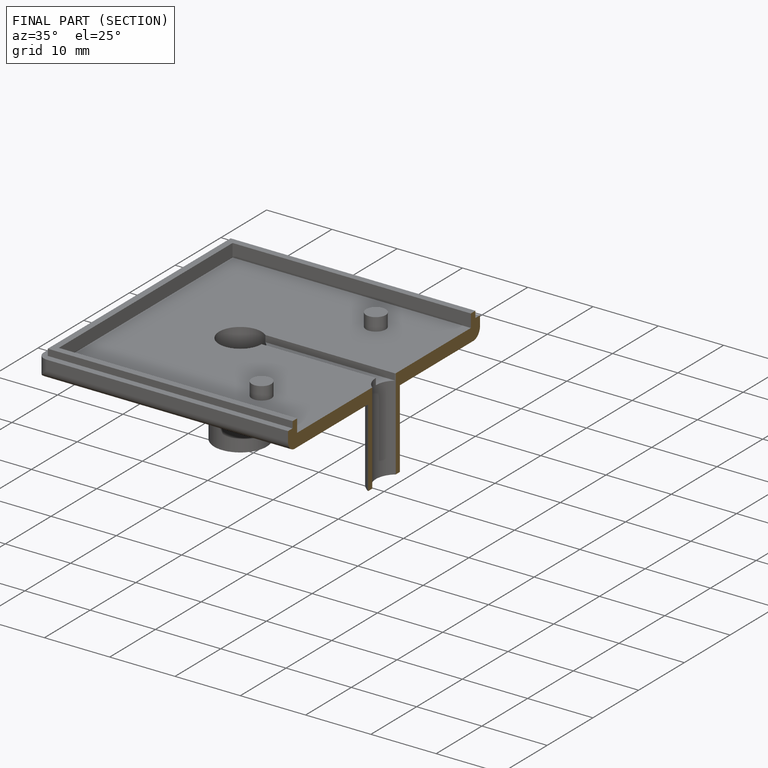
[diagram: finished part — half-section view (interior)]
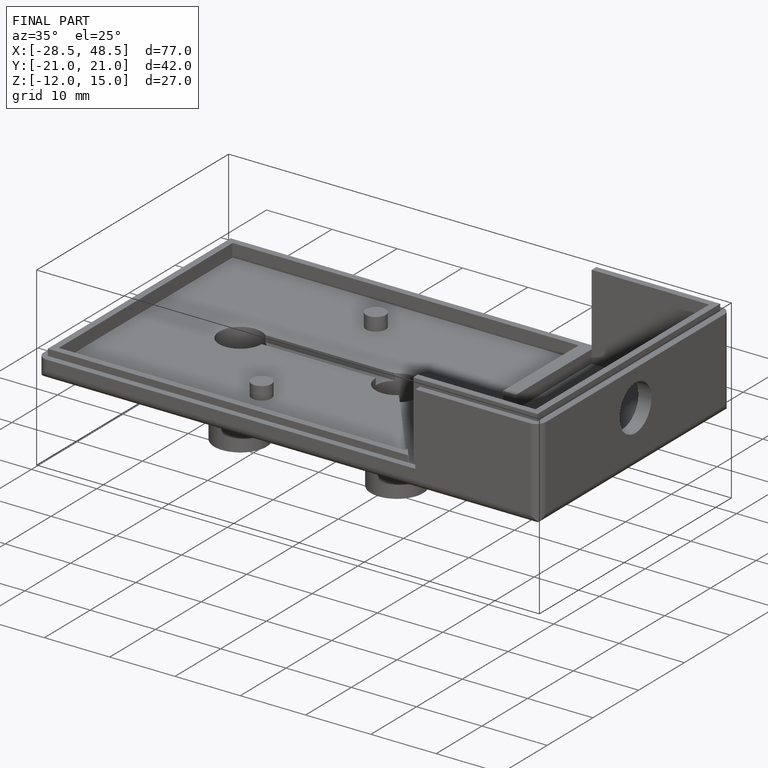
[diagram: finished part — iso view with bounding-box wireframe]
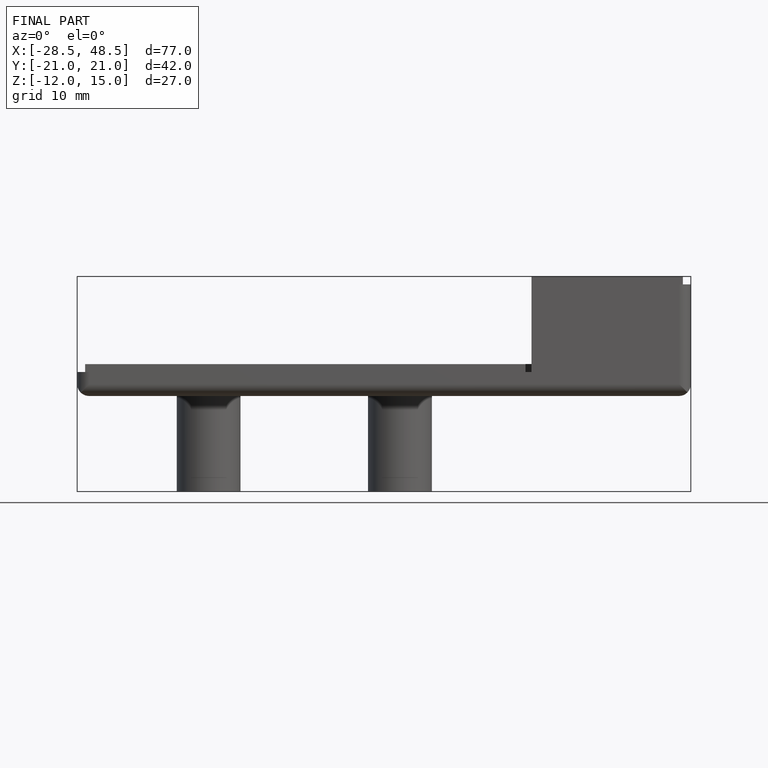
[diagram: finished part — front view with bounding-box wireframe]
